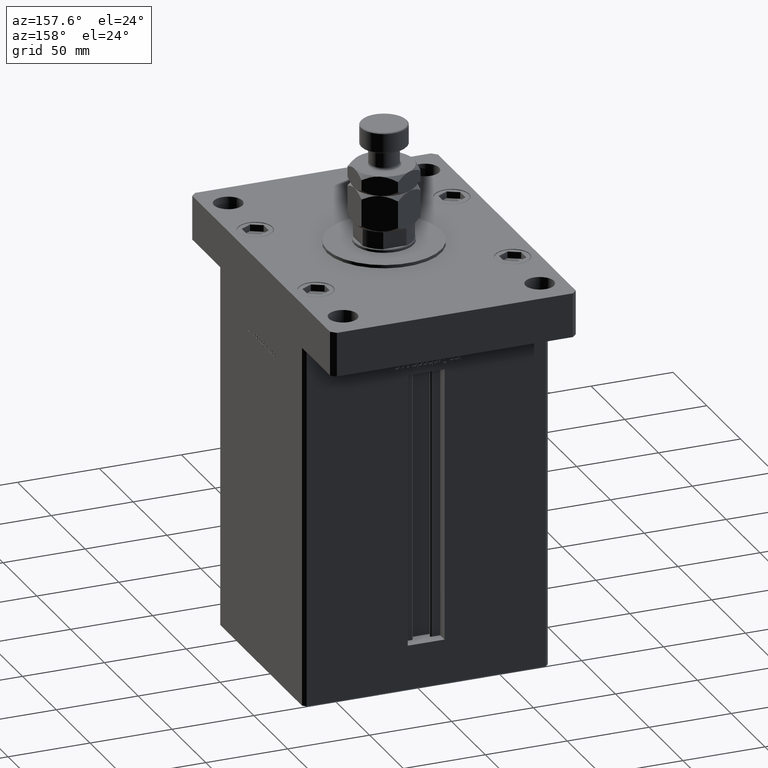
[diagram: clean part render]
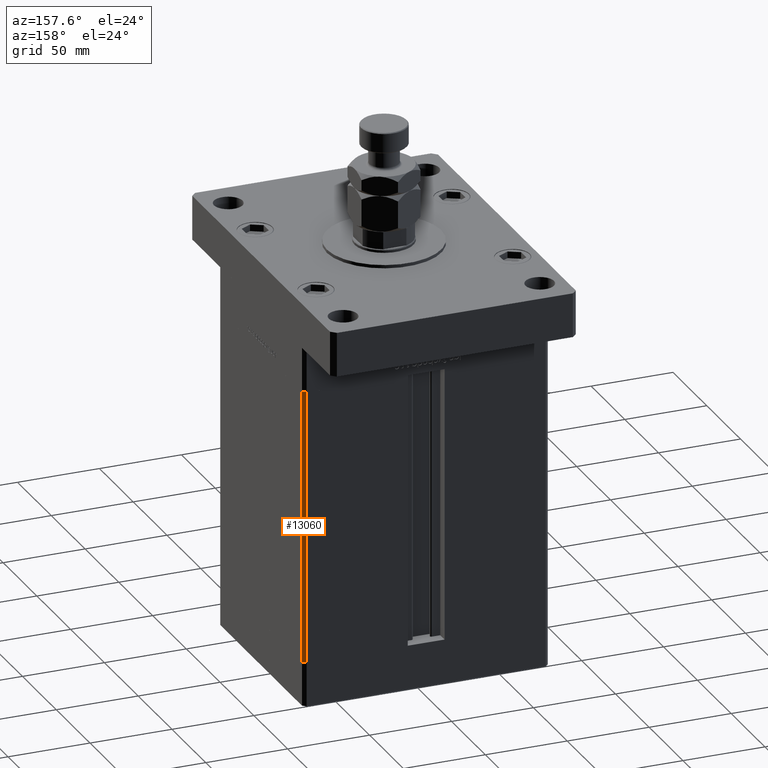
[diagram: same view with one face highlighted and labeled with its STEP entity id]
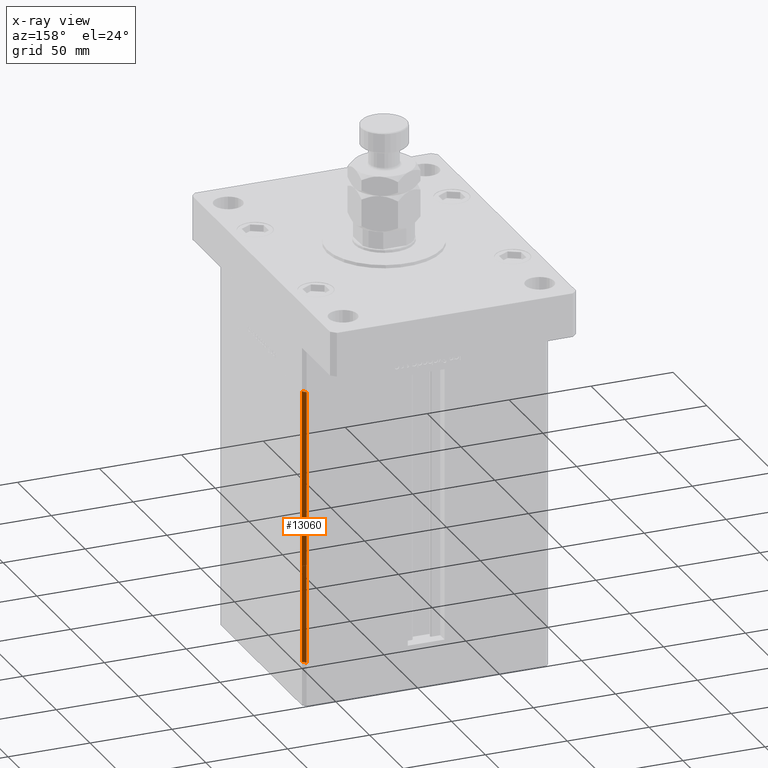
[diagram: x-ray of the same camera — body ghosted, the highlighted face saturated]
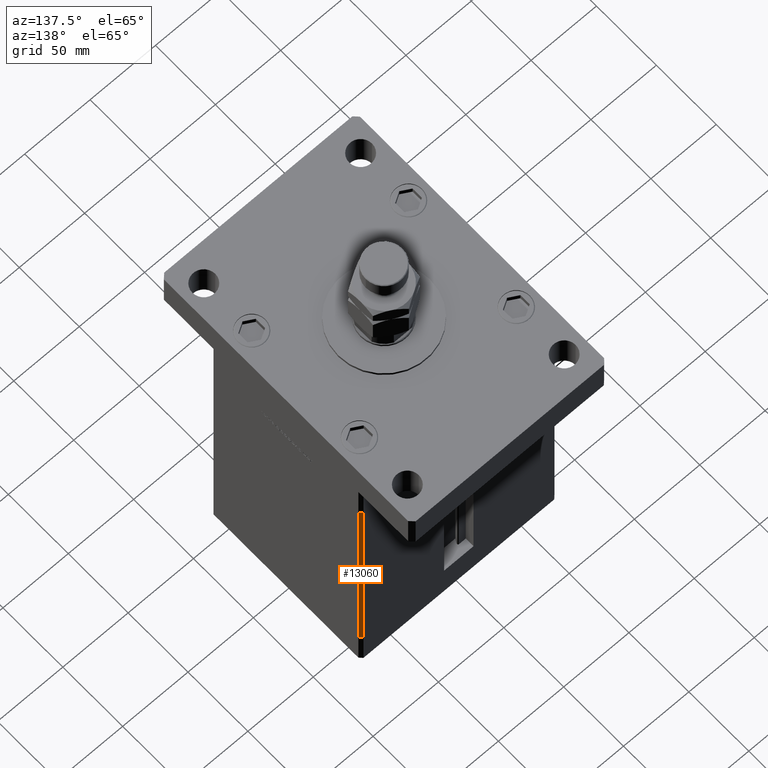
[diagram: same view with one face highlighted and labeled with its STEP entity id]
A machine part, auxiliary view. The second image highlights one B-rep face of the part: STEP entity #13060.
The next image is the same camera in x-ray: the body ghosted, the highlighted face saturated — about 0% of this face is hidden behind the body in this view.
A second angle (auxiliary view) of the same face is appended — the face is thin or edge-on in the first view.
In plain terms, the highlighted planar face has unit normal (0.7071, 0.7071, 0).
Its self-contained STEP definition (entity closure, byte-faithful):
#234 = EDGE_CURVE ( 'NONE', #32558, #649, #53994, .T. ) ;
#410 = DIRECTION ( 'NONE',  ( -0.000000000000000000, -0.000000000000000000, -1.000000000000000000 ) ) ;
#649 = VERTEX_POINT ( 'NONE', #40751 ) ;
#778 = ORIENTED_EDGE ( 'NONE', *, *, #39217, .T. ) ;
#3176 = EDGE_CURVE ( 'NONE', #33922, #32558, #54983, .T. ) ;
#4902 = CARTESIAN_POINT ( 'NONE',  ( 75.00000000000001421, 60.50000000000000000, 167.0000000000000000 ) ) ;
#6269 = EDGE_CURVE ( 'NONE', #33922, #37295, #22558, .T. ) ;
#6417 = DIRECTION ( 'NONE',  ( 0.7071067811865475727, 0.7071067811865475727, -0.000000000000000000 ) ) ;
#13060 = ADVANCED_FACE ( 'NONE', ( #54205 ), #44987, .T. ) ;
#14265 = ORIENTED_EDGE ( 'NONE', *, *, #234, .F. ) ;
#15367 = CARTESIAN_POINT ( 'NONE',  ( 73.00000000000001421, 62.50000000000000000, 167.0000000000000000 ) ) ;
#18056 = LINE ( 'NONE', #4902, #37449 ) ;
#18201 = VECTOR ( 'NONE', #41163, 1000.000000000000114 ) ;
#19910 = CARTESIAN_POINT ( 'NONE',  ( 73.00000000000001421, 62.50000000000000000, 0.000000000000000000 ) ) ;
#22558 = LINE ( 'NONE', #34853, #41494 ) ;
#24276 = DIRECTION ( 'NONE',  ( -0.000000000000000000, -0.000000000000000000, -1.000000000000000000 ) ) ;
#32402 = ORIENTED_EDGE ( 'NONE', *, *, #3176, .F. ) ;
#32558 = VERTEX_POINT ( 'NONE', #37271 ) ;
#33922 = VERTEX_POINT ( 'NONE', #41879 ) ;
#34536 = AXIS2_PLACEMENT_3D ( 'NONE', #15367, #6417, #53920 ) ;
#34853 = CARTESIAN_POINT ( 'NONE',  ( 73.00000000000001421, 62.50000000000000000, 167.0000000000000000 ) ) ;
#37271 = CARTESIAN_POINT ( 'NONE',  ( 73.00000000000001421, 62.50000000000000000, 0.000000000000000000 ) ) ;
#37295 = VERTEX_POINT ( 'NONE', #48257 ) ;
#37449 = VECTOR ( 'NONE', #410, 1000.000000000000000 ) ;
#37689 = CARTESIAN_POINT ( 'NONE',  ( 73.00000000000001421, 62.50000000000000000, 167.0000000000000000 ) ) ;
#39217 = EDGE_CURVE ( 'NONE', #37295, #649, #18056, .T. ) ;
#40751 = CARTESIAN_POINT ( 'NONE',  ( 75.00000000000001421, 60.50000000000000000, 0.000000000000000000 ) ) ;
#41163 = DIRECTION ( 'NONE',  ( 0.7071067811865474617, -0.7071067811865474617, 0.000000000000000000 ) ) ;
#41494 = VECTOR ( 'NONE', #51887, 1000.000000000000114 ) ;
#41879 = CARTESIAN_POINT ( 'NONE',  ( 73.00000000000001421, 62.50000000000000000, 167.0000000000000000 ) ) ;
#42372 = VECTOR ( 'NONE', #24276, 1000.000000000000000 ) ;
#44987 = PLANE ( 'NONE',  #34536 ) ;
#48257 = CARTESIAN_POINT ( 'NONE',  ( 75.00000000000001421, 60.50000000000000000, 167.0000000000000000 ) ) ;
#48983 = ORIENTED_EDGE ( 'NONE', *, *, #6269, .T. ) ;
#49591 = EDGE_LOOP ( 'NONE', ( #14265, #32402, #48983, #778 ) ) ;
#51887 = DIRECTION ( 'NONE',  ( 0.7071067811865474617, -0.7071067811865474617, 0.000000000000000000 ) ) ;
#53920 = DIRECTION ( 'NONE',  ( -0.7071067811865474617, 0.7071067811865474617, 0.000000000000000000 ) ) ;
#53994 = LINE ( 'NONE', #19910, #18201 ) ;
#54205 = FACE_OUTER_BOUND ( 'NONE', #49591, .T. ) ;
#54983 = LINE ( 'NONE', #37689, #42372 ) ;